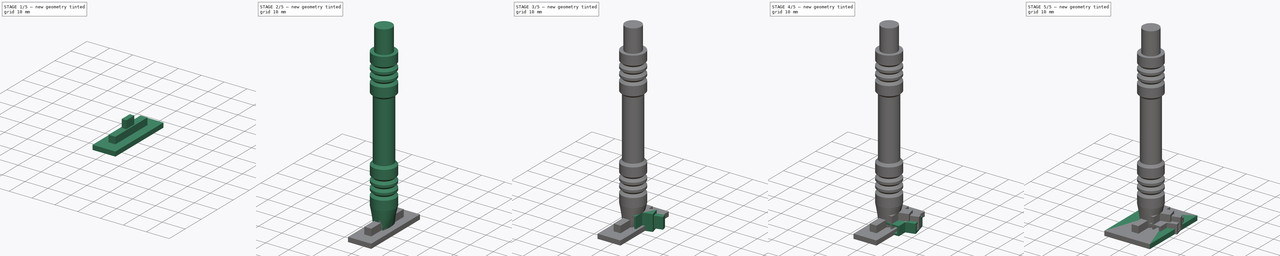
[diagram: build sequence overview — one tinted view per stage of 5, left to right]
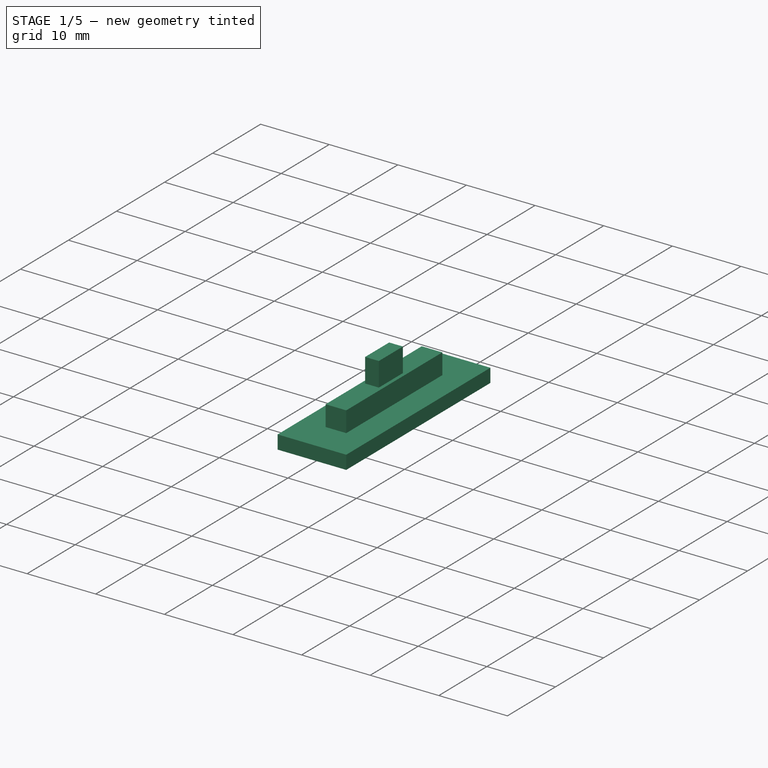
[diagram: stage 1 of 5 — iso view after this stage's code; geometry added in this stage tinted green]
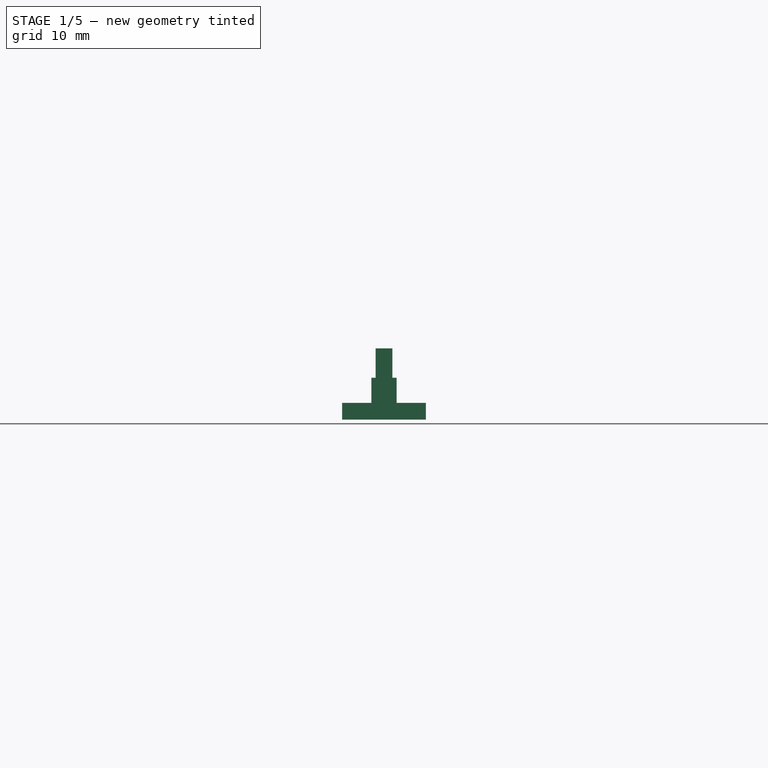
[diagram: stage 1 of 5 — front view after this stage's code; geometry added in this stage tinted green]
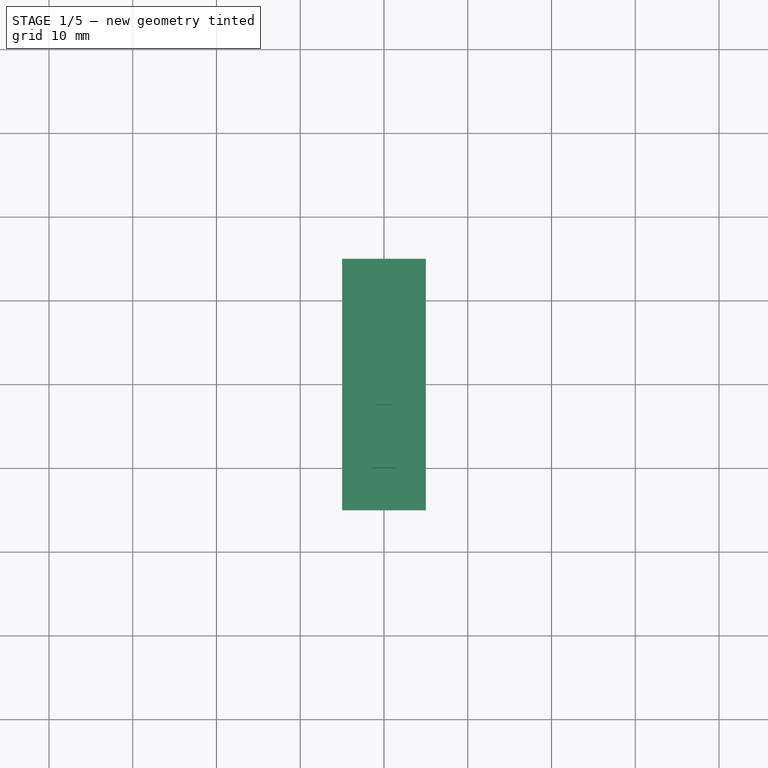
[diagram: stage 1 of 5 — top view after this stage's code; geometry added in this stage tinted green]
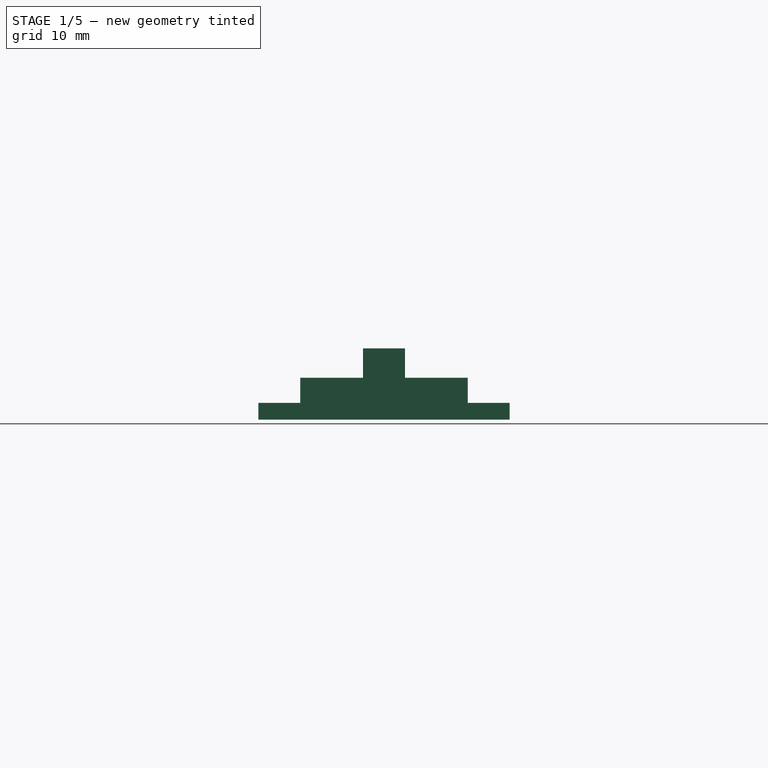
[diagram: stage 1 of 5 — right view after this stage's code; geometry added in this stage tinted green]
FCSTD DOCUMENT  (FreeCAD 0.20R29603 (Git))
Label: NeuroHelmet
License: All rights reserved
LicenseURL: http://en.wikipedia.org/wiki/All_rights_reserved
objects: Sketcher::SketchObject×18, PartDesign::Pad×10, PartDesign::Body×5, PartDesign::Pocket×4, PartDesign::AdditiveLoft×1, PartDesign::Revolution×1
note: 55 computed .brp shape members not serialized (recipe doc carries the construction recipe); baked Part::Feature solids carry a one-line shape summary decoded from their .brp

FEATURE [PartDesign::Body] Body003  label="Pillar"
  Group = -> [Sketch009,Sketch010,AdditiveLoft,Sketch011,Sketch012,Revolution,Sketch013,Pad005,Sketch014,Pocket003]
  Origin = -> Origin003
  Tip = -> Pocket003
FEATURE [Sketcher::SketchObject] Sketch015
  FullyConstrained = true
  MapMode = 5
  Support = -> [XY_Plane004]
  sketch-geometry (5):
    g0: LineSegment StartX=-5 StartY=15 StartZ=0 EndX=-5 EndY=-15 EndZ=0
    g1: LineSegment StartX=-5 StartY=-15 StartZ=0 EndX=5 EndY=-15 EndZ=0
    g2: LineSegment StartX=5 StartY=-15 StartZ=0 EndX=5 EndY=15 EndZ=0
    g3: LineSegment StartX=5 StartY=15 StartZ=0 EndX=-5 EndY=15 EndZ=0
    g4: GeomPoint X=0 Y=0 Z=0
  constraints (12):
    c: Coincident(g0,g1)
    c: Coincident(g1,g2)
    c: Coincident(g2,g3)
    c: Coincident(g3,g0)
    c: Horizontal(g1)
    c: Horizontal(g3)
    c: Vertical(g0)
    c: Vertical(g2)
    c: Symmetric(g1,g0,g4)
    c: Coincident(g4,g-1)
    c: DistanceX(g3,g3) = 10
    c: DistanceY(g2,g2) = 30
FEATURE [PartDesign::Pad] Pad007
  Direction = (0,0,1)
  Length = 2
  Length2 = 10
  Profile = -> Sketch015
  ReferenceAxis = -> Sketch015 [N_Axis]
  Type = 0
FEATURE [Sketcher::SketchObject] Sketch016
  FullyConstrained = true
  MapMode = 5
  Placement = pos=(0,0,2) rot=(0,0,1;0rad)
  Support = -> [Pad007]
  sketch-geometry (5):
    g0: LineSegment StartX=-1.5 StartY=10 StartZ=0 EndX=-1.5 EndY=-10 EndZ=0
    g1: LineSegment StartX=-1.5 StartY=-10 StartZ=0 EndX=1.5 EndY=-10 EndZ=0
    g2: LineSegment StartX=1.5 StartY=-10 StartZ=0 EndX=1.5 EndY=10 EndZ=0
    g3: LineSegment StartX=1.5 StartY=10 StartZ=0 EndX=-1.5 EndY=10 EndZ=0
    g4: GeomPoint X=0 Y=0 Z=0
  constraints (12):
    c: Coincident(g0,g1)
    c: Coincident(g1,g2)
    c: Coincident(g2,g3)
    c: Coincident(g3,g0)
    c: Horizontal(g1)
    c: Horizontal(g3)
    c: Vertical(g0)
    c: Vertical(g2)
    c: Symmetric(g1,g0,g4)
    c: Coincident(g4,g-1)
    c: DistanceX(g3,g3) = 3
    c: DistanceY(g2,g2) = 20
FEATURE [PartDesign::Pad] Pad008
  BaseFeature = -> Pad007
  Direction = (0,0,1)
  Length = 3
  Length2 = 10
  Profile = -> Sketch016
  ReferenceAxis = -> Sketch016 [N_Axis]
  Type = 0
FEATURE [Sketcher::SketchObject] Sketch017
  FullyConstrained = true
  MapMode = 5
  Placement = pos=(0,0,5) rot=(0,0,1;0rad)
  Support = -> [Pad008]
  sketch-geometry (5):
    g0: LineSegment StartX=-1 StartY=2.5 StartZ=0 EndX=-1 EndY=-2.5 EndZ=0
    g1: LineSegment StartX=-1 StartY=-2.5 StartZ=0 EndX=1 EndY=-2.5 EndZ=0
    g2: LineSegment StartX=1 StartY=-2.5 StartZ=0 EndX=1 EndY=2.5 EndZ=0
    g3: LineSegment StartX=1 StartY=2.5 StartZ=0 EndX=-1 EndY=2.5 EndZ=0
    g4: GeomPoint X=0 Y=0 Z=0
  constraints (12):
    c: Coincident(g0,g1)
    c: Coincident(g1,g2)
    c: Coincident(g2,g3)
    c: Coincident(g3,g0)
    c: Horizontal(g1)
    c: Horizontal(g3)
    c: Vertical(g0)
    c: Vertical(g2)
    c: Symmetric(g1,g0,g4)
    c: Coincident(g4,g-1)
    c: DistanceY(g2,g2) = 5
    c: DistanceX(g3,g3) = 2
FEATURE [PartDesign::Pad] Pad009
  BaseFeature = -> Pad008
  Direction = (0,0,1)
  Length = 3.5
  Length2 = 10
  Profile = -> Sketch017
  ReferenceAxis = -> Sketch017 [N_Axis]
  Type = 0
FEATURE [PartDesign::Body] Body004  label="ConnectorFront"
  Group = -> [Sketch015,Pad007,Sketch016,Pad008,Sketch017,Pad009]
  Origin = -> Origin004
  Tip = -> Pad009
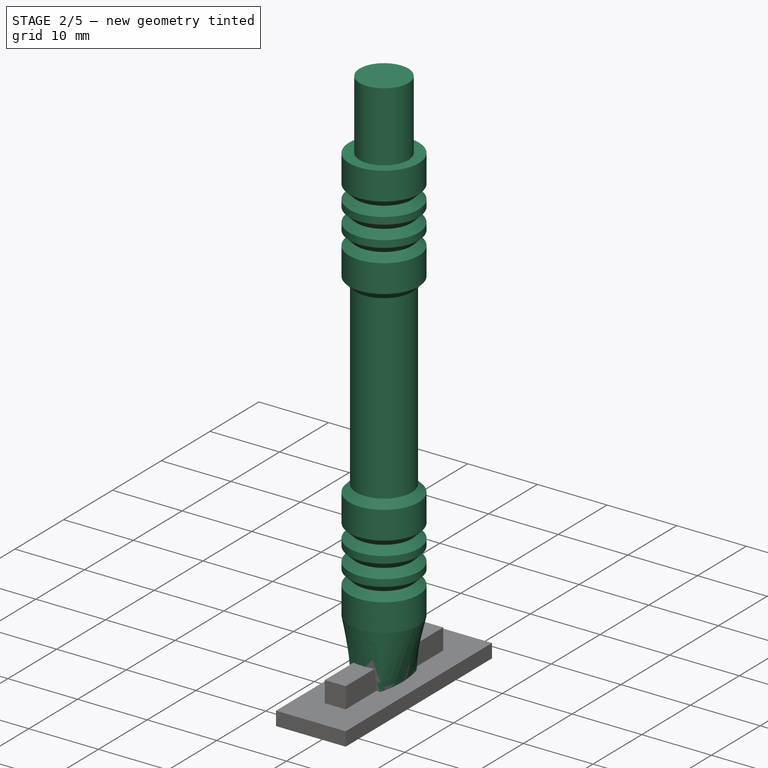
[diagram: stage 2 of 5 — iso view after this stage's code; geometry added in this stage tinted green]
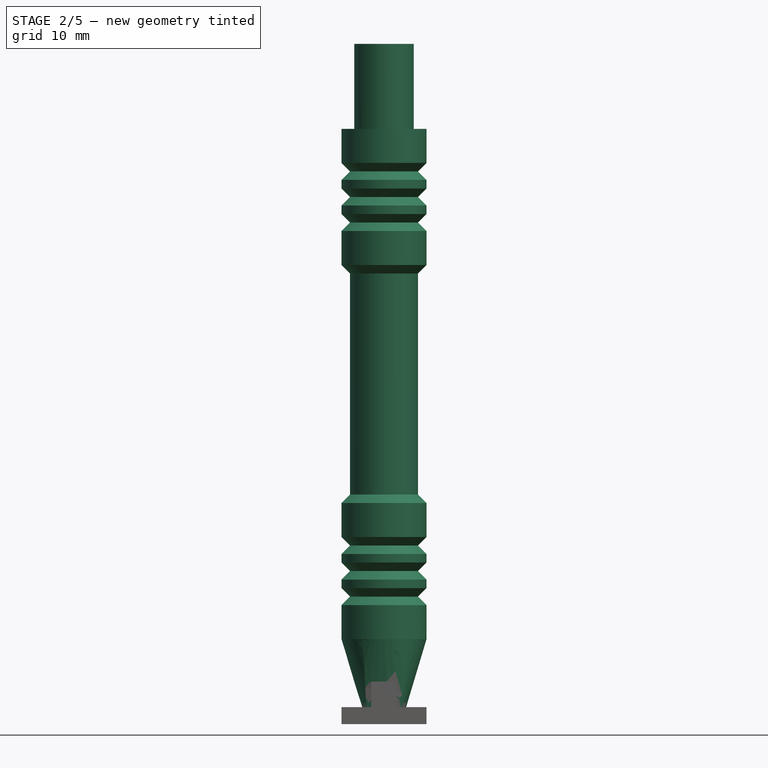
[diagram: stage 2 of 5 — front view after this stage's code; geometry added in this stage tinted green]
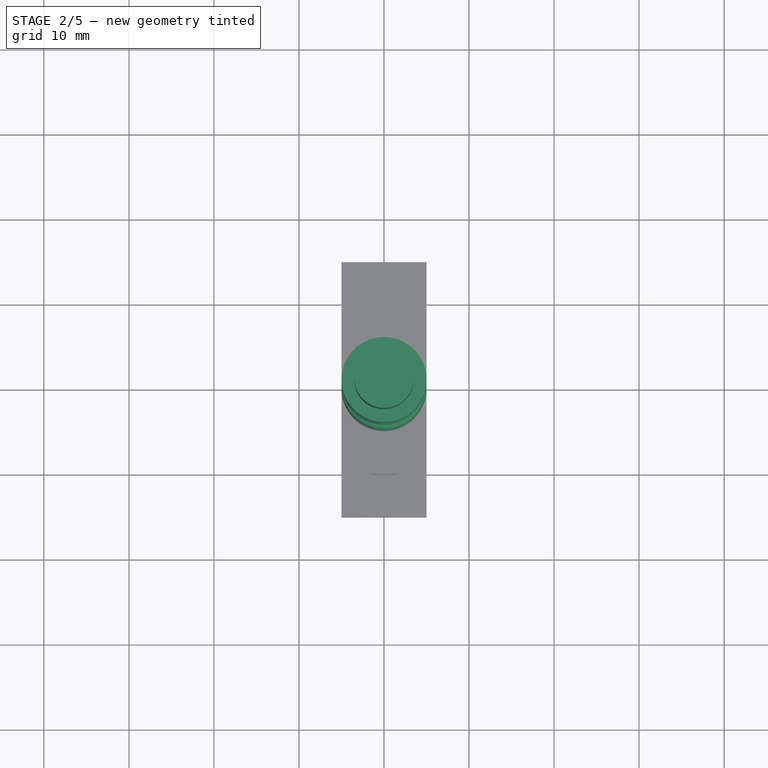
[diagram: stage 2 of 5 — top view after this stage's code; geometry added in this stage tinted green]
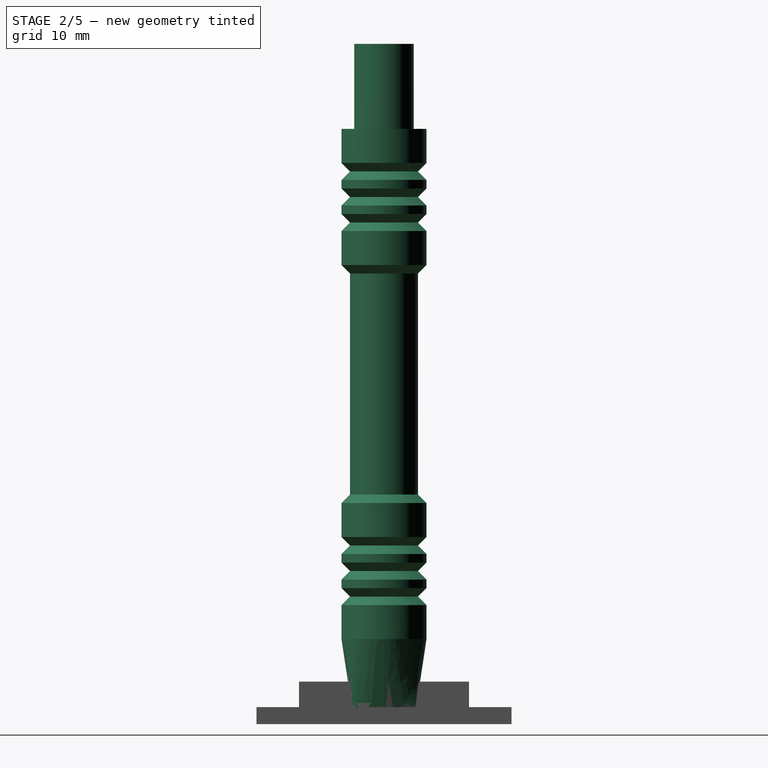
[diagram: stage 2 of 5 — right view after this stage's code; geometry added in this stage tinted green]
FEATURE [Sketcher::SketchObject] Sketch008
  FullyConstrained = true
  MapMode = 5
  Placement = pos=(7.59575,2.03528,0) rot=(0.476905,0.621515,0.621515;2.25159rad)
  Support = -> [Pocket002]
  sketch-geometry (5):
    g0: LineSegment StartX=2e-16 StartY=6 StartZ=0 EndX=2e-16 EndY=1 EndZ=0
    g1: LineSegment StartX=2e-16 StartY=1 StartZ=0 EndX=2 EndY=1 EndZ=0
    g2: LineSegment StartX=2 StartY=1 StartZ=0 EndX=2 EndY=6 EndZ=0
    g3: LineSegment StartX=2 StartY=6 StartZ=0 EndX=2e-16 EndY=6 EndZ=0
    g4: GeomPoint X=1 Y=3.5 Z=0
  constraints (13):
    c: Coincident(g0,g1)
    c: Coincident(g1,g2)
    c: Coincident(g2,g3)
    c: Coincident(g3,g0)
    c: Horizontal(g1)
    c: Horizontal(g3)
    c: Vertical(g0)
    c: Vertical(g2)
    c: Symmetric(g1,g0,g4)
    c: DistanceX(g4) = 1
    c: DistanceY(g4) = 3.5
    c: DistanceX(g1,g1) = 2
    c: DistanceY(g2,g2) = 5
FEATURE [Sketcher::SketchObject] Sketch009
  FullyConstrained = true
  MapMode = 5
  Support = -> [XY_Plane003]
  sketch-geometry (5):
    g0: LineSegment StartX=-2 StartY=3.5 StartZ=0 EndX=-2 EndY=-3.5 EndZ=0
    g1: LineSegment StartX=-2 StartY=-3.5 StartZ=0 EndX=2 EndY=-3.5 EndZ=0
    g2: LineSegment StartX=2 StartY=-3.5 StartZ=0 EndX=2 EndY=3.5 EndZ=0
    g3: LineSegment StartX=2 StartY=3.5 StartZ=0 EndX=-2 EndY=3.5 EndZ=0
    g4: GeomPoint X=0 Y=0 Z=0
  constraints (12):
    c: Coincident(g0,g1)
    c: Coincident(g1,g2)
    c: Coincident(g2,g3)
    c: Coincident(g3,g0)
    c: Horizontal(g1)
    c: Horizontal(g3)
    c: Vertical(g0)
    c: Vertical(g2)
    c: Symmetric(g1,g0,g4)
    c: Coincident(g4,g-1)
    c: DistanceX(g3,g3) = 4
    c: DistanceY(g2,g2) = 7
FEATURE [Sketcher::SketchObject] Sketch010
  AttachmentOffset = pos=(0,0,10) rot=(0,0,1;0rad)
  FullyConstrained = true
  MapMode = 5
  Placement = pos=(0,0,10) rot=(0,0,1;0rad)
  Support = -> [XY_Plane003]
  sketch-geometry (1):
    g0: Circle CenterX=0 CenterY=0 CenterZ=0 NormalX=0 NormalY=0 NormalZ=1 AngleXU=0 Radius=5
  constraints (2):
    c: Coincident(g0,g-1)
    c: Diameter(g0) = 10
FEATURE [PartDesign::AdditiveLoft] AdditiveLoft
  Closed = false
  Profile = -> Sketch010
  Ruled = false
  Sections = -> [Sketch009]
FEATURE [Sketcher::SketchObject] Sketch011
  FullyConstrained = true
  MapMode = 5
  Placement = pos=(0,0,10) rot=(0,0,1;0rad)
  Support = -> [AdditiveLoft]
  sketch-geometry (1):
    g0: Circle CenterX=0 CenterY=0 CenterZ=0 NormalX=0 NormalY=0 NormalZ=1 AngleXU=0 Radius=5
  constraints (2):
    c: Coincident(g0,g-1)
    c: Diameter(g0) = 10
FEATURE [Sketcher::SketchObject] Sketch012
  AttachmentOffset = pos=(0,10,0) rot=(0,0,1;0rad)
  FullyConstrained = true
  MapMode = 5
  Placement = pos=(-2.2e-15,2.2e-15,10) rot=(0.57735,0.57735,0.57735;2.0944rad)
  Support = -> [YZ_Plane003]
  sketch-geometry (28):
    g0: LineSegment StartX=0 StartY=0 StartZ=0 EndX=5 EndY=0 EndZ=0
    g1: LineSegment StartX=5 StartY=0 StartZ=0 EndX=5 EndY=4 EndZ=0
    g2: LineSegment StartX=5 StartY=4 StartZ=0 EndX=4 EndY=5 EndZ=0
    g3: LineSegment StartX=4 StartY=5 StartZ=0 EndX=5 EndY=6 EndZ=0
    g4: LineSegment StartX=5 StartY=6 StartZ=0 EndX=5 EndY=7 EndZ=0
    g5: LineSegment StartX=5 StartY=7 StartZ=0 EndX=4 EndY=8 EndZ=0
    g6: LineSegment StartX=4 StartY=8 StartZ=0 EndX=5 EndY=9 EndZ=0
    g7: LineSegment StartX=5 StartY=9 StartZ=0 EndX=5 EndY=10 EndZ=0
    g8: LineSegment StartX=5 StartY=10 StartZ=0 EndX=4 EndY=11 EndZ=0
    g9: LineSegment StartX=4 StartY=11 StartZ=0 EndX=5 EndY=12 EndZ=0
    g10: LineSegment StartX=5 StartY=12 StartZ=0 EndX=5 EndY=16 EndZ=0
    g11: LineSegment StartX=5 StartY=16 StartZ=0 EndX=4 EndY=17 EndZ=0
    g12: LineSegment StartX=4 StartY=17 StartZ=0 EndX=4 EndY=43 EndZ=0
    g13: LineSegment StartX=4 StartY=43 StartZ=0 EndX=5 EndY=44 EndZ=0
    g14: LineSegment StartX=5 StartY=44 StartZ=0 EndX=5 EndY=48 EndZ=0
    g15: LineSegment StartX=5 StartY=48 StartZ=0 EndX=4 EndY=49 EndZ=0
    g16: LineSegment StartX=4 StartY=49 StartZ=0 EndX=5 EndY=50 EndZ=0
    g17: LineSegment StartX=5 StartY=50 StartZ=0 EndX=5 EndY=51 EndZ=0
    g18: LineSegment StartX=5 StartY=51 StartZ=0 EndX=4 EndY=52 EndZ=0
    g19: LineSegment StartX=4 StartY=52 StartZ=0 EndX=5 EndY=53 EndZ=0
    g20: LineSegment StartX=5 StartY=53 StartZ=0 EndX=5 EndY=54 EndZ=0
    g21: LineSegment StartX=5 StartY=54 StartZ=0 EndX=4 EndY=55 EndZ=0
    g22: LineSegment StartX=4 StartY=55 StartZ=0 EndX=5 EndY=56 EndZ=0
    g23: LineSegment StartX=5 StartY=56 StartZ=0 EndX=5 EndY=60 EndZ=0
    g24: LineSegment StartX=5 StartY=60 StartZ=0 EndX=0 EndY=60 EndZ=0
    g25: LineSegment StartX=0 StartY=60 StartZ=0 EndX=0 EndY=0 EndZ=0
    g26: LineSegment StartX=4 StartY=0 StartZ=0 EndX=4 EndY=60 EndZ=0
    g27: LineSegment StartX=5 StartY=60 StartZ=0 EndX=5 EndY=0 EndZ=0
  constraints (84):
    c: Coincident(g-1,g0)
    c: PointOnObject(g0,g-1)
    c: Coincident(g0,g1)
    c: Vertical(g1)
    c: Coincident(g1,g2)
    c: Coincident(g2,g3)
    c: Coincident(g3,g4)
    c: Coincident(g4,g5)
    c: Coincident(g5,g6)
    c: Coincident(g6,g7)
    c: Coincident(g7,g8)
    c: Coincident(g8,g9)
    c: Coincident(g9,g10)
    c: Vertical(g10)
    c: Coincident(g10,g11)
    c: Coincident(g11,g12)
    c: Coincident(g12,g13)
    c: Coincident(g13,g14)
    c: Vertical(g14)
    c: Coincident(g14,g15)
    c: Coincident(g15,g16)
    c: Coincident(g16,g17)
    c: Vertical(g17)
    c: Coincident(g17,g18)
    c: Coincident(g18,g19)
    c: Coincident(g19,g20)
    c: Vertical(g20)
    c: Coincident(g20,g21)
    c: Coincident(g21,g22)
    c: Coincident(g22,g23)
    c: Coincident(g23,g24)
    c: PointOnObject(g24,g-2)
    c: Horizontal(g24)
    c: Coincident(g24,g25)
    c: Coincident(g25,g0)
    c: PointOnObject(g26,g-1)
    c: Vertical(g26)
    c: Vertical(g27)
    c: DistanceY(g25,g25) = 60
    c: DistanceX(g0,g0) = 5
    c: Coincident(g27,g0)
    c: DistanceX(g26,g27) = 1
    c: PointOnObject(g26,g24)
    c: PointOnObject(g27,g24)
    c: PointOnObject(g23,g27)
    c: PointOnObject(g22,g27)
    c: PointOnObject(g20,g27)
    c: PointOnObject(g17,g27)
    c: PointOnObject(g14,g27)
    c: PointOnObject(g15,g26)
    c: PointOnObject(g18,g26)
    c: PointOnObject(g21,g26)
    c: PointOnObject(g12,g26)
    c: PointOnObject(g11,g26)
    c: PointOnObject(g10,g27)
    c: PointOnObject(g8,g26)
    c: PointOnObject(g7,g27)
    c: PointOnObject(g6,g27)
    c: PointOnObject(g5,g26)
    c: PointOnObject(g4,g27)
    c: PointOnObject(g3,g27)
    c: PointOnObject(g2,g26)
    c: Angle(g2) = 2.35619
    c: Angle(g3) = 0.785398
    c: Parallel(g2,g5)
    c: Parallel(g5,g8)
    c: Parallel(g8,g11)
    c: Parallel(g11,g21)
    c: Parallel(g21,g18)
    c: Parallel(g18,g15)
    c: Parallel(g22,g19)
    c: Parallel(g19,g16)
    c: Parallel(g16,g13)
    c: Parallel(g13,g9)
    c: Parallel(g9,g6)
    c: Parallel(g6,g3)
    c: Equal(g17,g20)
    c: Equal(g20,g7)
    c: Equal(g7,g4)
    c: DistanceY(g20,g20) = 1
    c: Equal(g23,g14)
    c: Equal(g14,g10)
    c: Equal(g10,g1)
    c: DistanceY(g1,g1) = 4
FEATURE [PartDesign::Revolution] Revolution
  Angle = 360
  Axis = (-2e-16,3e-16,1)
  Base = (-2.2e-15,2.2e-15,10)
  BaseFeature = -> AdditiveLoft
  Profile = -> Sketch012
  ReferenceAxis = -> Sketch012 [V_Axis]
  Reversed = true
FEATURE [Sketcher::SketchObject] Sketch013
  FullyConstrained = true
  MapMode = 5
  Placement = pos=(-1.55e-14,1.94e-14,70) rot=(0,0,1;0rad)
  Support = -> [Revolution]
  sketch-geometry (1):
    g0: Circle CenterX=0 CenterY=0 CenterZ=0 NormalX=0 NormalY=0 NormalZ=1 AngleXU=0 Radius=3.5
  constraints (2):
    c: Coincident(g0,g-1)
    c: Diameter(g0) = 7
FEATURE [PartDesign::Pad] Pad005
  BaseFeature = -> Revolution
  Direction = (-2e-16,3e-16,1)
  Length = 10
  Length2 = 10
  Profile = -> Sketch013
  ReferenceAxis = -> Sketch013 [N_Axis]
  Type = 0
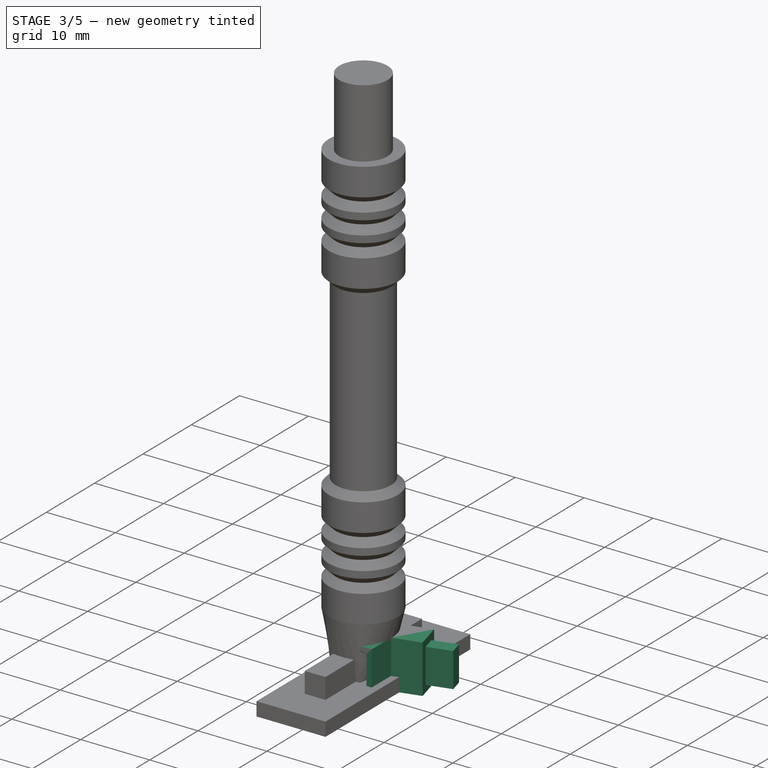
[diagram: stage 3 of 5 — iso view after this stage's code; geometry added in this stage tinted green]
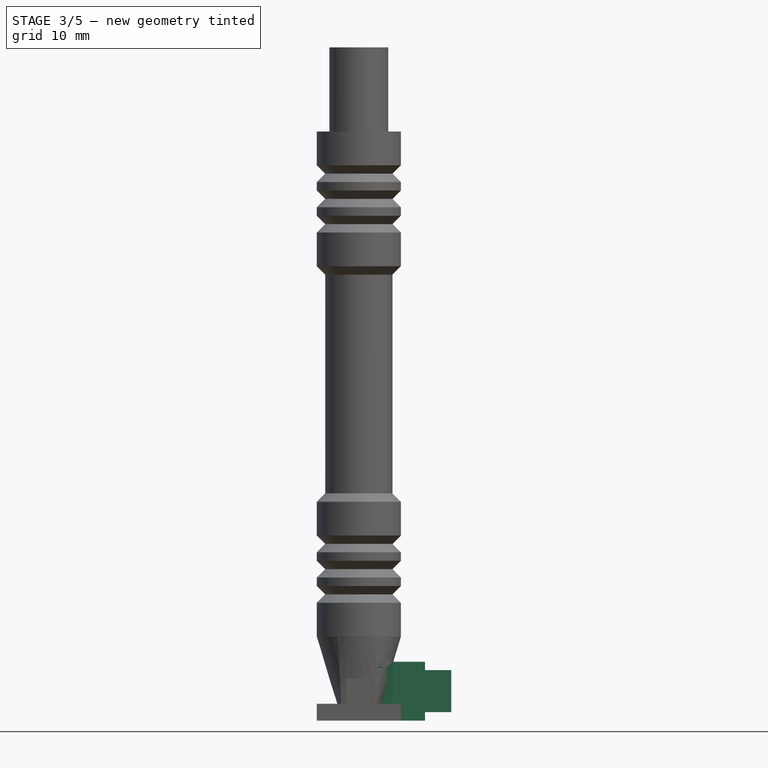
[diagram: stage 3 of 5 — front view after this stage's code; geometry added in this stage tinted green]
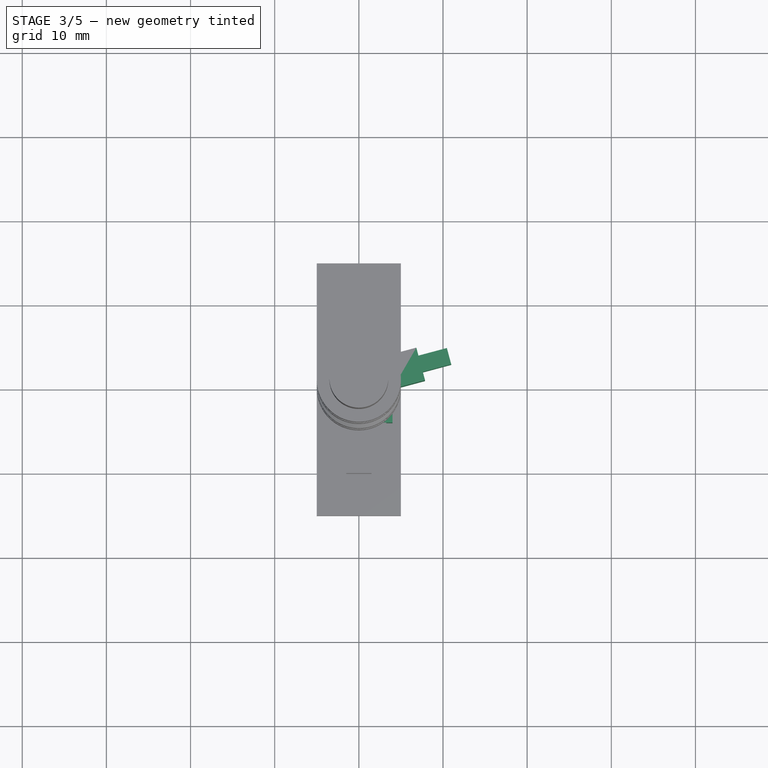
[diagram: stage 3 of 5 — top view after this stage's code; geometry added in this stage tinted green]
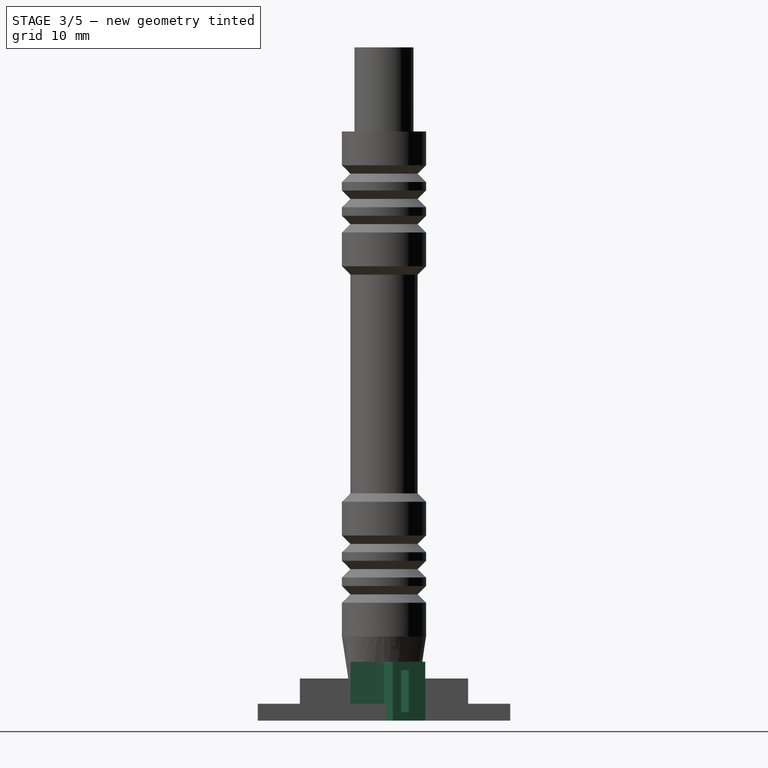
[diagram: stage 3 of 5 — right view after this stage's code; geometry added in this stage tinted green]
FEATURE [PartDesign::Body] Body001  label="RotatorHorizont"
  Group = -> [Sketch003,Pad003,Sketch004,Pocket,Sketch005,Pocket001]
  Origin = -> Origin001
  Tip = -> Pocket001
FEATURE [Sketcher::SketchObject] Sketch006
  FullyConstrained = true
  MapMode = 5
  Support = -> [XY_Plane002]
  sketch-geometry (6):
    g0: LineSegment StartX=4 StartY=0 StartZ=0 EndX=4 EndY=-4 EndZ=0
    g1: LineSegment StartX=4 StartY=-4 StartZ=0 EndX=0 EndY=-4 EndZ=0
    g2: LineSegment StartX=0 StartY=-4 StartZ=0 EndX=0 EndY=3.06931 EndZ=0
    g3: LineSegment StartX=0 StartY=3.06931 StartZ=0 EndX=6.82843 EndY=4.89898 EndZ=0
    g4: LineSegment StartX=6.82843 StartY=4.89898 StartZ=0 EndX=7.8637 EndY=1.03528 EndZ=0
    g5: LineSegment StartX=7.8637 StartY=1.03528 StartZ=0 EndX=4 EndY=0 EndZ=0
  constraints (18):
    c: Coincident(g0,g1)
    c: Coincident(g1,g2)
    c: Coincident(g3,g4)
    c: Coincident(g4,g5)
    c: Coincident(g5,g0)
    c: Coincident(g2,g3)
    c: Horizontal(g1)
    c: Angle(g4,g-1) = 1.309
    c: Vertical(g0)
    c: Vertical(g2)
    c: Angle(g3,g4) = 1.5708
    c: Angle(g4,g5) = 1.5708
    c: DistanceY(g0,g0) = 4
    c: Distance(g4) = 4
    c: DistanceX(g1,g1) = 4
    c: Distance(g5) = 4
    c: PointOnObject(g0,g-1)
    c: PointOnObject(g-1,g2)
FEATURE [PartDesign::Pad] Pad004
  Direction = (0,0,1)
  Length = 7
  Length2 = 10
  Profile = -> Sketch006
  ReferenceAxis = -> Sketch006 [N_Axis]
  Type = 0
FEATURE [Sketcher::SketchObject] Sketch007
  FullyConstrained = true
  MapMode = 5
  Placement = pos=(0,-4,0) rot=(1,0,0;1.5708rad)
  Support = -> [Pad004]
  sketch-geometry (5):
    g0: LineSegment StartX=0.75 StartY=6.25 StartZ=0 EndX=0.75 EndY=0.75 EndZ=0
    g1: LineSegment StartX=0.75 StartY=0.75 StartZ=0 EndX=3.25 EndY=0.75 EndZ=0
    g2: LineSegment StartX=3.25 StartY=0.75 StartZ=0 EndX=3.25 EndY=6.25 EndZ=0
    g3: LineSegment StartX=3.25 StartY=6.25 StartZ=0 EndX=0.75 EndY=6.25 EndZ=0
    g4: GeomPoint X=2 Y=3.5 Z=0
  constraints (13):
    c: Coincident(g0,g1)
    c: Coincident(g1,g2)
    c: Coincident(g2,g3)
    c: Coincident(g3,g0)
    c: Horizontal(g1)
    c: Horizontal(g3)
    c: Vertical(g0)
    c: Vertical(g2)
    c: Symmetric(g1,g0,g4)
    c: DistanceX(g4) = 2
    c: DistanceY(g4) = 3.5
    c: DistanceY(g2,g2) = 5.5
    c: DistanceX(g1,g1) = 2.5
FEATURE [PartDesign::Pocket] Pocket002
  BaseFeature = -> Pad004
  Direction = (0,1,-2e-16)
  Length = 4
  Length2 = 5
  Profile = -> Sketch007
  ReferenceAxis = -> Sketch007 [N_Axis]
  Type = 0
FEATURE [PartDesign::Pad] Pad006
  BaseFeature = -> Pocket002
  Direction = (0.965926,0.258819,-1e-16)
  Length = 3.5
  Length2 = 10
  Profile = -> Sketch008
  ReferenceAxis = -> Sketch008 [N_Axis]
  Type = 0
FEATURE [PartDesign::Body] Body002  label="RotatorVertical"
  Group = -> [Sketch006,Pad004,Sketch007,Pocket002,Sketch008,Pad006]
  Origin = -> Origin002
  Tip = -> Pad006
FEATURE [Sketcher::SketchObject] Sketch014
  FullyConstrained = true
  MapMode = 5
  Placement = pos=(0,0,0) rot=(1,0,0;3.14159rad)
  Support = -> [Pad005]
  sketch-geometry (5):
    g0: LineSegment StartX=-1.25 StartY=2.75 StartZ=0 EndX=-1.25 EndY=-2.75 EndZ=0
    g1: LineSegment StartX=-1.25 StartY=-2.75 StartZ=0 EndX=1.25 EndY=-2.75 EndZ=0
    g2: LineSegment StartX=1.25 StartY=-2.75 StartZ=0 EndX=1.25 EndY=2.75 EndZ=0
    g3: LineSegment StartX=1.25 StartY=2.75 StartZ=0 EndX=-1.25 EndY=2.75 EndZ=0
    g4: GeomPoint X=0 Y=0 Z=0
  constraints (12):
    c: Coincident(g0,g1)
    c: Coincident(g1,g2)
    c: Coincident(g2,g3)
    c: Coincident(g3,g0)
    c: Horizontal(g1)
    c: Horizontal(g3)
    c: Vertical(g0)
    c: Vertical(g2)
    c: Symmetric(g1,g0,g4)
    c: Coincident(g4,g-1)
    c: DistanceX(g3,g3) = 2.5
    c: DistanceY(g2,g2) = 5.5
FEATURE [PartDesign::Pocket] Pocket003
  BaseFeature = -> Pad005
  Direction = (0,0,1)
  Length = 4
  Length2 = 5
  Profile = -> Sketch014
  ReferenceAxis = -> Sketch014 [N_Axis]
  Type = 0
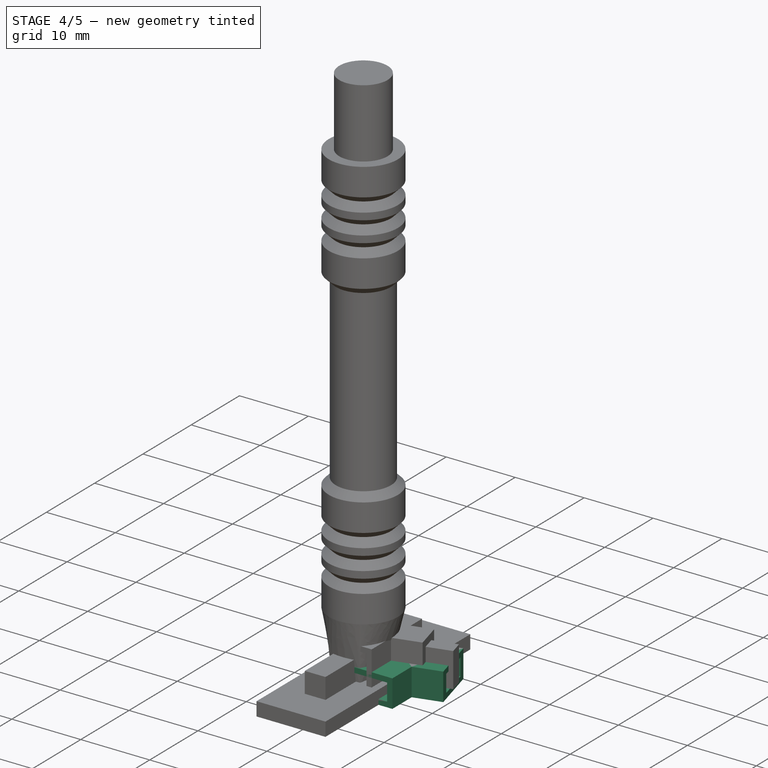
[diagram: stage 4 of 5 — iso view after this stage's code; geometry added in this stage tinted green]
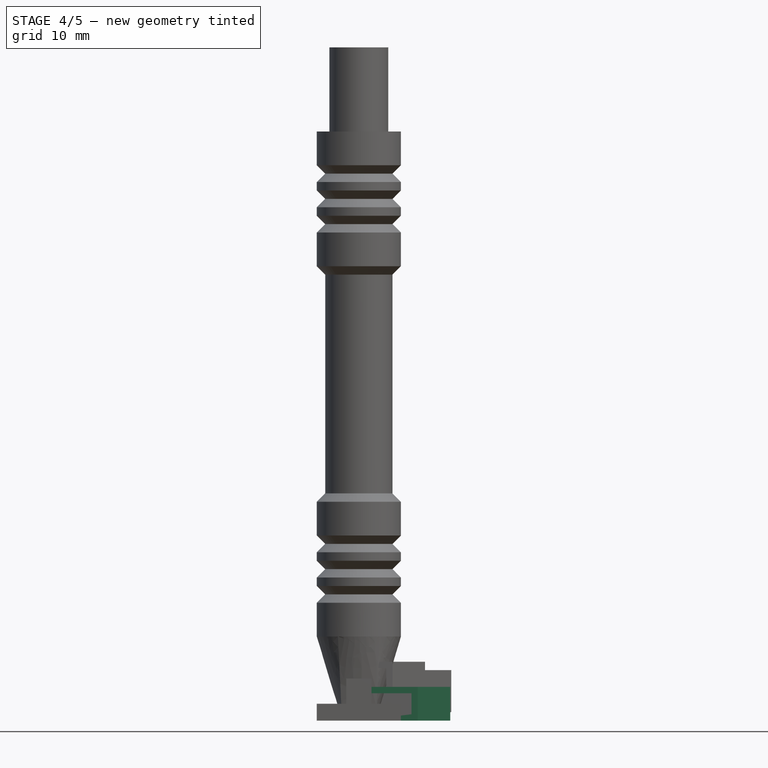
[diagram: stage 4 of 5 — front view after this stage's code; geometry added in this stage tinted green]
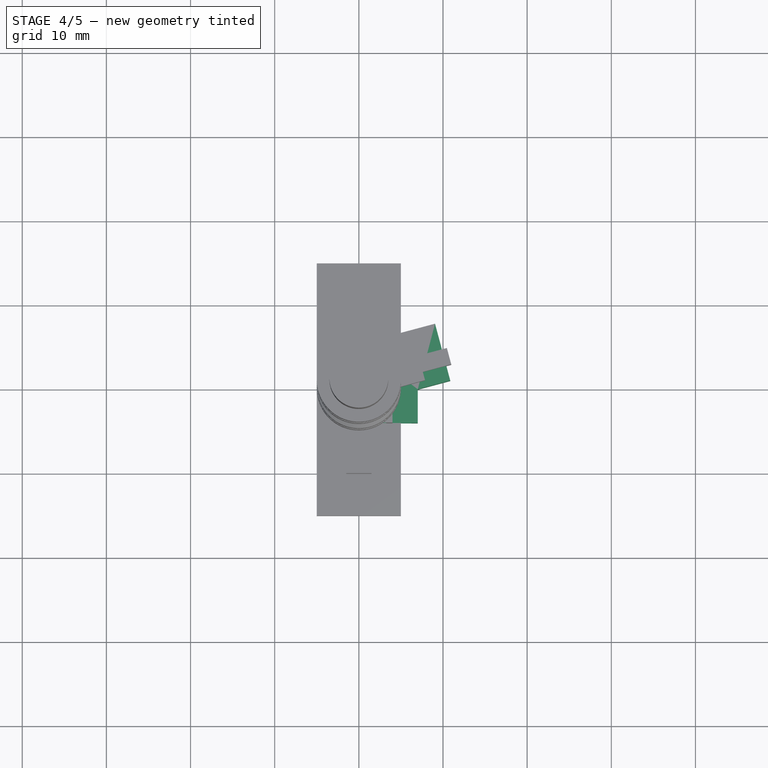
[diagram: stage 4 of 5 — top view after this stage's code; geometry added in this stage tinted green]
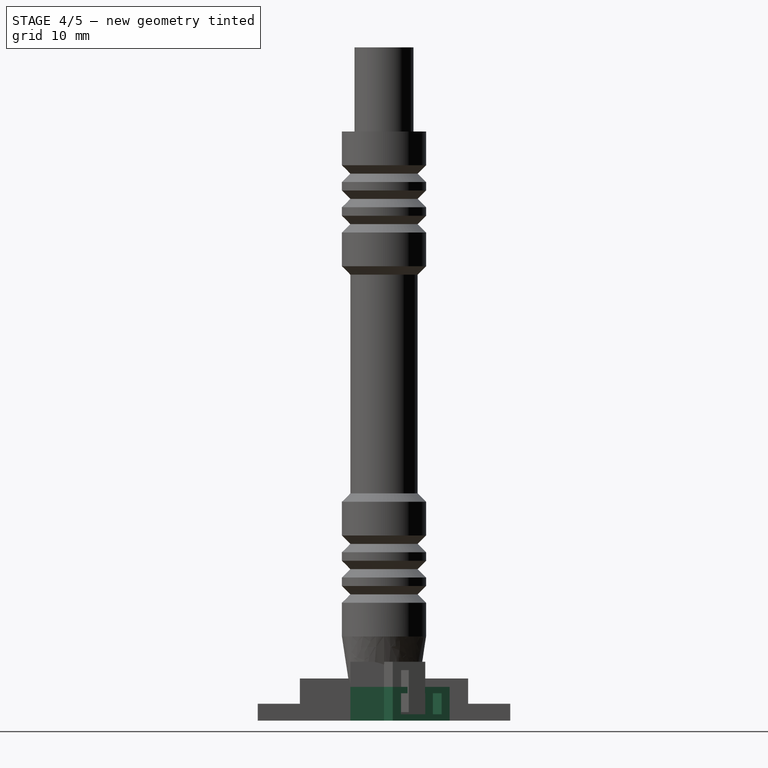
[diagram: stage 4 of 5 — right view after this stage's code; geometry added in this stage tinted green]
FEATURE [PartDesign::Body] Body  label="ConnectorBack"
  Group = -> [Sketch,Pad,Sketch001,Pad001,Sketch002,Pad002]
  Origin = -> Origin
  Tip = -> Pad002
FEATURE [Sketcher::SketchObject] Sketch003
  FullyConstrained = true
  MapMode = 5
  Support = -> [XY_Plane001]
  sketch-geometry (6):
    g0: LineSegment StartX=7 StartY=0 StartZ=0 EndX=7 EndY=-4 EndZ=0
    g1: LineSegment StartX=7 StartY=-4 StartZ=0 EndX=0 EndY=-4 EndZ=0
    g2: LineSegment StartX=0 StartY=-4 StartZ=0 EndX=0 EndY=5.37129 EndZ=0
    g3: LineSegment StartX=0 StartY=5.37129 StartZ=0 EndX=9.05197 EndY=7.79676 EndZ=0
    g4: LineSegment StartX=9.05197 StartY=7.79676 StartZ=0 EndX=10.8637 EndY=1.03528 EndZ=0
    g5: LineSegment StartX=10.8637 StartY=1.03528 StartZ=0 EndX=7 EndY=0 EndZ=0
  constraints (18):
    c: Coincident(g0,g1)
    c: Coincident(g1,g2)
    c: Coincident(g3,g4)
    c: Coincident(g4,g5)
    c: Coincident(g5,g0)
    c: Coincident(g2,g3)
    c: Horizontal(g1)
    c: Angle(g4,g-1) = 1.309
    c: Vertical(g0)
    c: Vertical(g2)
    c: Angle(g3,g4) = 1.5708
    c: Angle(g4,g5) = 1.5708
    c: DistanceY(g0,g0) = 4
    c: Distance(g4) = 7
    c: DistanceX(g1,g1) = 7
    c: Distance(g5) = 4
    c: PointOnObject(g0,g-1)
    c: PointOnObject(g-1,g2)
FEATURE [PartDesign::Pad] Pad003
  Direction = (0,0,1)
  Length = 4
  Length2 = 10
  Profile = -> Sketch003
  ReferenceAxis = -> Sketch003 [N_Axis]
  Type = 0
FEATURE [Sketcher::SketchObject] Sketch004
  FullyConstrained = true
  MapMode = 5
  Placement = pos=(0,-4,0) rot=(1,0,0;1.5708rad)
  Support = -> [Pad003]
  sketch-geometry (5):
    g0: LineSegment StartX=0.75 StartY=0.75 StartZ=0 EndX=0.75 EndY=3.25 EndZ=0
    g1: LineSegment StartX=0.75 StartY=3.25 StartZ=0 EndX=6.25 EndY=3.25 EndZ=0
    g2: LineSegment StartX=6.25 StartY=3.25 StartZ=0 EndX=6.25 EndY=0.75 EndZ=0
    g3: LineSegment StartX=6.25 StartY=0.75 StartZ=0 EndX=0.75 EndY=0.75 EndZ=0
    g4: GeomPoint X=3.5 Y=2 Z=0
  constraints (13):
    c: Coincident(g0,g1)
    c: Coincident(g1,g2)
    c: Coincident(g2,g3)
    c: Coincident(g3,g0)
    c: Horizontal(g1)
    c: Horizontal(g3)
    c: Vertical(g0)
    c: Vertical(g2)
    c: Symmetric(g1,g0,g4)
    c: DistanceX(g4) = 3.5
    c: DistanceY(g4) = 2
    c: DistanceX(g1,g1) = 5.5
    c: DistanceY(g2,g2) = 2.5
FEATURE [PartDesign::Pocket] Pocket
  BaseFeature = -> Pad003
  Direction = (0,1,-2e-16)
  Length = 4
  Length2 = 5
  Profile = -> Sketch004
  ReferenceAxis = -> Sketch004 [N_Axis]
  Type = 0
FEATURE [Sketcher::SketchObject] Sketch005
  FullyConstrained = true
  MapMode = 5
  Placement = pos=(10.3948,2.78528,0) rot=(0.476905,0.621515,0.621515;2.25159rad)
  Support = -> [Pocket]
  sketch-geometry (5):
    g0: LineSegment StartX=-0.8 StartY=3.25 StartZ=0 EndX=-0.8 EndY=0.75 EndZ=0
    g1: LineSegment StartX=-0.8 StartY=0.75 StartZ=0 EndX=4.2 EndY=0.75 EndZ=0
    g2: LineSegment StartX=4.2 StartY=0.75 StartZ=0 EndX=4.2 EndY=3.25 EndZ=0
    g3: LineSegment StartX=4.2 StartY=3.25 StartZ=0 EndX=-0.8 EndY=3.25 EndZ=0
    g4: GeomPoint X=1.7 Y=2 Z=0
  constraints (13):
    c: Coincident(g0,g1)
    c: Coincident(g1,g2)
    c: Coincident(g2,g3)
    c: Coincident(g3,g0)
    c: Horizontal(g1)
    c: Horizontal(g3)
    c: Vertical(g0)
    c: Vertical(g2)
    c: Symmetric(g1,g0,g4)
    c: DistanceX(g4) = 1.7
    c: DistanceY(g4) = 2
    c: DistanceX(g3,g3) = 5
    c: DistanceY(g2,g2) = 2.5
FEATURE [PartDesign::Pocket] Pocket001
  BaseFeature = -> Pocket
  Direction = (-0.965926,-0.258819,0)
  Length = 4
  Length2 = 5
  Profile = -> Sketch005
  ReferenceAxis = -> Sketch005 [N_Axis]
  Type = 0
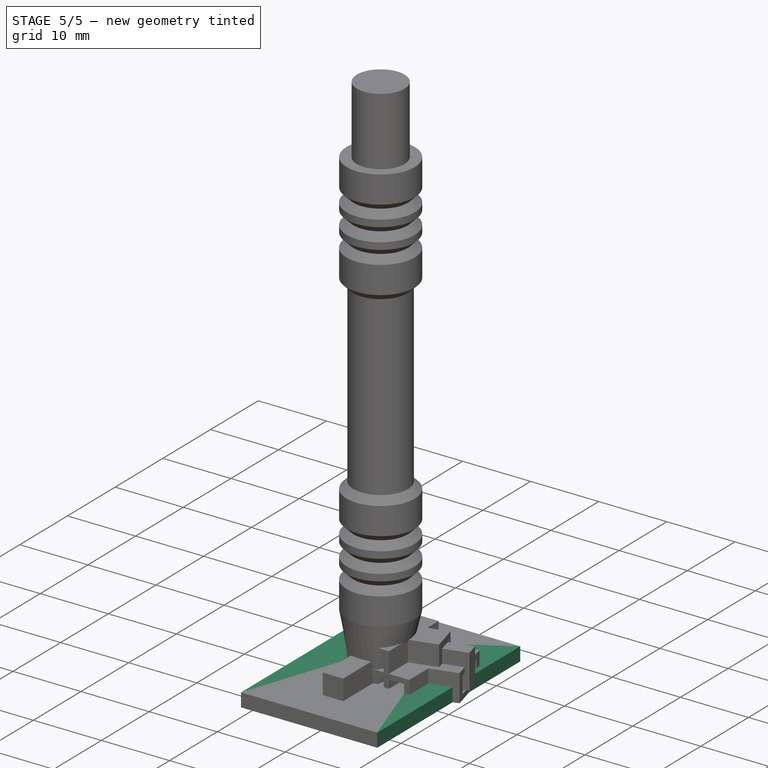
[diagram: stage 5 of 5 — iso view after this stage's code; geometry added in this stage tinted green]
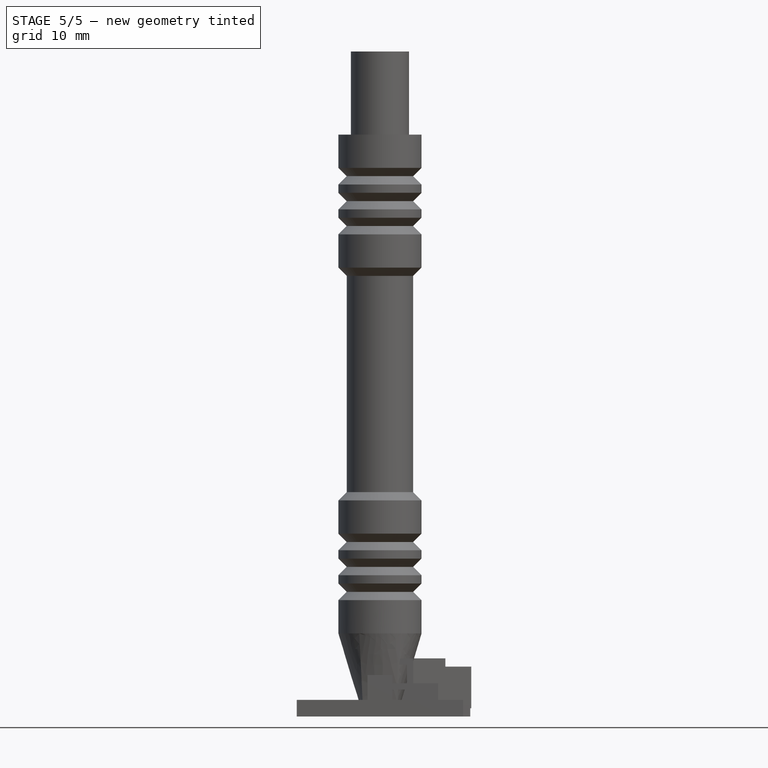
[diagram: stage 5 of 5 — front view after this stage's code; geometry added in this stage tinted green]
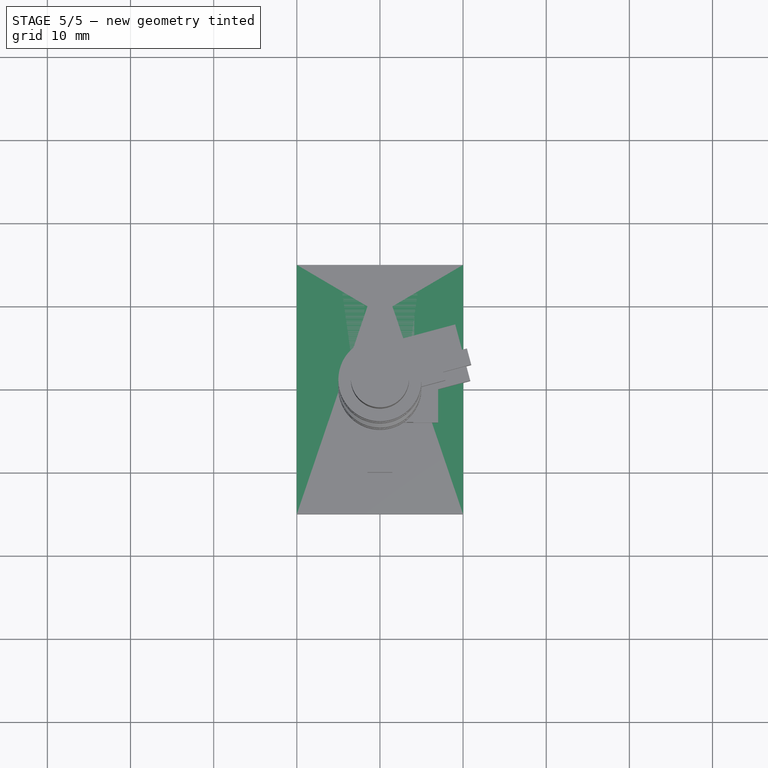
[diagram: stage 5 of 5 — top view after this stage's code; geometry added in this stage tinted green]
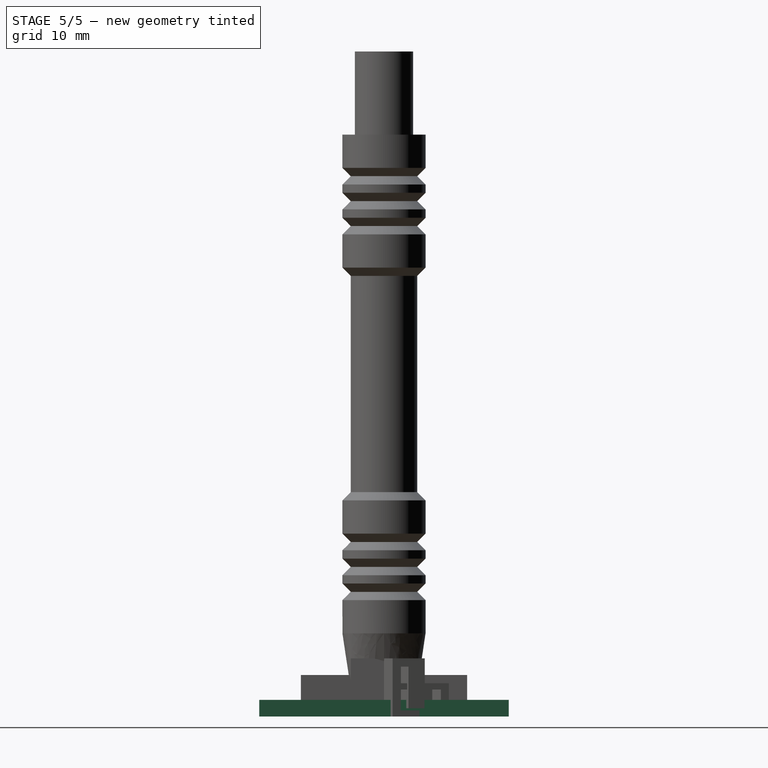
[diagram: stage 5 of 5 — right view after this stage's code; geometry added in this stage tinted green]
FEATURE [Sketcher::SketchObject] Sketch
  FullyConstrained = true
  MapMode = 5
  Support = -> [XY_Plane]
  sketch-geometry (5):
    g0: LineSegment StartX=-10 StartY=15 StartZ=0 EndX=-10 EndY=-15 EndZ=0
    g1: LineSegment StartX=-10 StartY=-15 StartZ=0 EndX=10 EndY=-15 EndZ=0
    g2: LineSegment StartX=10 StartY=-15 StartZ=0 EndX=10 EndY=15 EndZ=0
    g3: LineSegment StartX=10 StartY=15 StartZ=0 EndX=-10 EndY=15 EndZ=0
    g4: GeomPoint X=0 Y=0 Z=0
  constraints (12):
    c: Coincident(g0,g1)
    c: Coincident(g1,g2)
    c: Coincident(g2,g3)
    c: Coincident(g3,g0)
    c: Horizontal(g1)
    c: Horizontal(g3)
    c: Vertical(g0)
    c: Vertical(g2)
    c: Symmetric(g1,g0,g4)
    c: Coincident(g4,g-1)
    c: DistanceX(g3,g3) = 20
    c: DistanceY(g2,g2) = 30
FEATURE [PartDesign::Pad] Pad
  Direction = (0,0,1)
  Length = 2
  Length2 = 10
  Profile = -> Sketch
  ReferenceAxis = -> Sketch [N_Axis]
  Type = 0
FEATURE [Sketcher::SketchObject] Sketch001
  FullyConstrained = true
  MapMode = 5
  Placement = pos=(0,0,2) rot=(0,0,1;0rad)
  Support = -> [Pad]
  sketch-geometry (5):
    g0: LineSegment StartX=-1.5 StartY=10 StartZ=0 EndX=-1.5 EndY=-10 EndZ=0
    g1: LineSegment StartX=-1.5 StartY=-10 StartZ=0 EndX=1.5 EndY=-10 EndZ=0
    g2: LineSegment StartX=1.5 StartY=-10 StartZ=0 EndX=1.5 EndY=10 EndZ=0
    g3: LineSegment StartX=1.5 StartY=10 StartZ=0 EndX=-1.5 EndY=10 EndZ=0
    g4: GeomPoint X=0 Y=0 Z=0
  constraints (12):
    c: Coincident(g0,g1)
    c: Coincident(g1,g2)
    c: Coincident(g2,g3)
    c: Coincident(g3,g0)
    c: Horizontal(g1)
    c: Horizontal(g3)
    c: Vertical(g0)
    c: Vertical(g2)
    c: Symmetric(g1,g0,g4)
    c: Coincident(g4,g-1)
    c: DistanceX(g3,g3) = 3
    c: DistanceY(g2,g2) = 20
FEATURE [PartDesign::Pad] Pad001
  BaseFeature = -> Pad
  Direction = (0,0,1)
  Length = 3
  Length2 = 10
  Profile = -> Sketch001
  ReferenceAxis = -> Sketch001 [N_Axis]
  Type = 0
FEATURE [Sketcher::SketchObject] Sketch002
  FullyConstrained = true
  MapMode = 5
  Placement = pos=(0,0,5) rot=(0,0,1;0rad)
  Support = -> [Pad001]
  sketch-geometry (5):
    g0: LineSegment StartX=-1 StartY=2.5 StartZ=0 EndX=-1 EndY=-2.5 EndZ=0
    g1: LineSegment StartX=-1 StartY=-2.5 StartZ=0 EndX=1 EndY=-2.5 EndZ=0
    g2: LineSegment StartX=1 StartY=-2.5 StartZ=0 EndX=1 EndY=2.5 EndZ=0
    g3: LineSegment StartX=1 StartY=2.5 StartZ=0 EndX=-1 EndY=2.5 EndZ=0
    g4: GeomPoint X=0 Y=0 Z=0
  constraints (12):
    c: Coincident(g0,g1)
    c: Coincident(g1,g2)
    c: Coincident(g2,g3)
    c: Coincident(g3,g0)
    c: Horizontal(g1)
    c: Horizontal(g3)
    c: Vertical(g0)
    c: Vertical(g2)
    c: Symmetric(g1,g0,g4)
    c: Coincident(g4,g-1)
    c: DistanceY(g2,g2) = 5
    c: DistanceX(g3,g3) = 2
FEATURE [PartDesign::Pad] Pad002
  BaseFeature = -> Pad001
  Direction = (0,0,1)
  Length = 3.5
  Length2 = 10
  Profile = -> Sketch002
  ReferenceAxis = -> Sketch002 [N_Axis]
  Type = 0
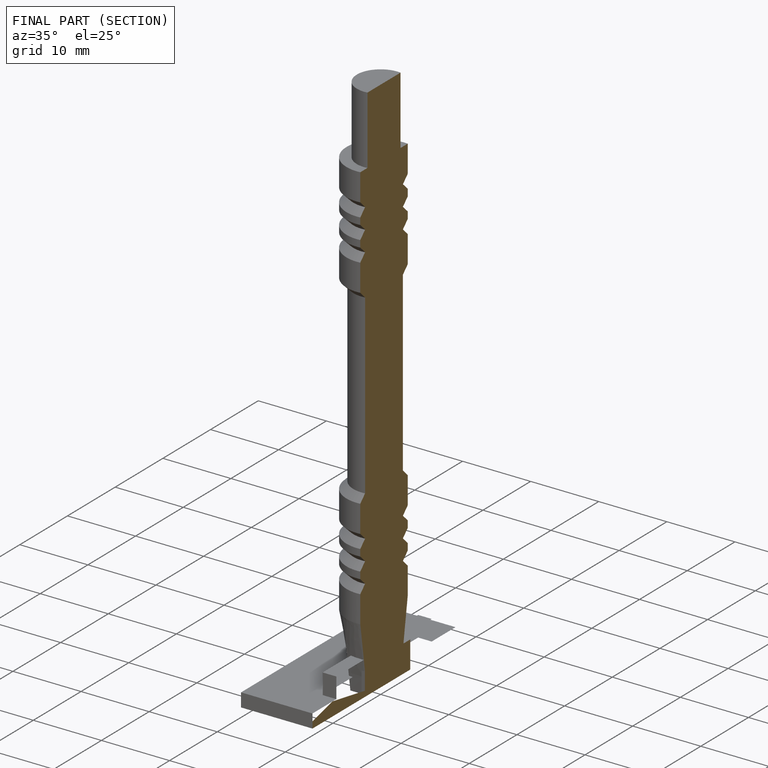
[diagram: finished part — half-section view (interior)]
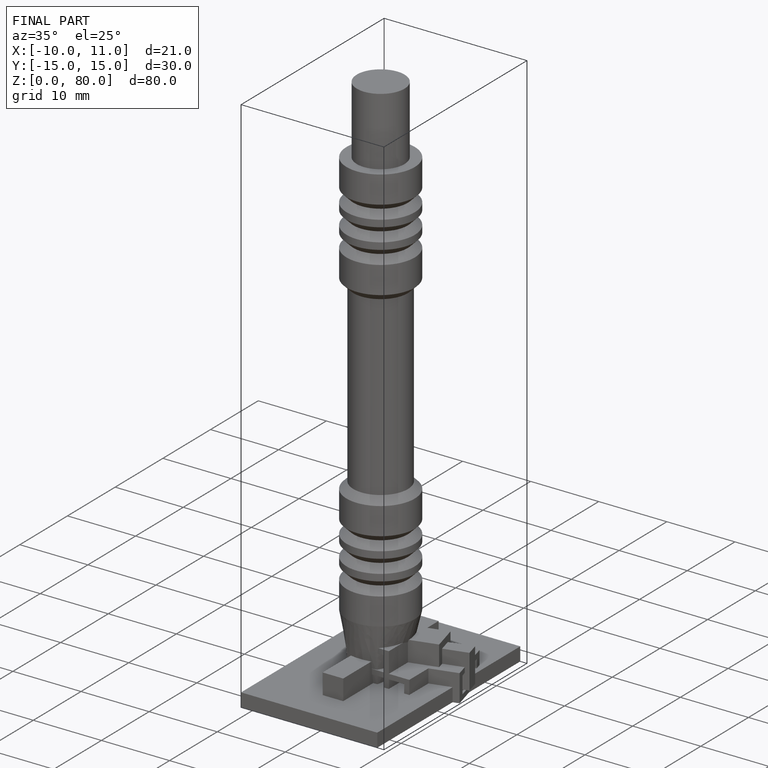
[diagram: finished part — iso view with bounding-box wireframe]
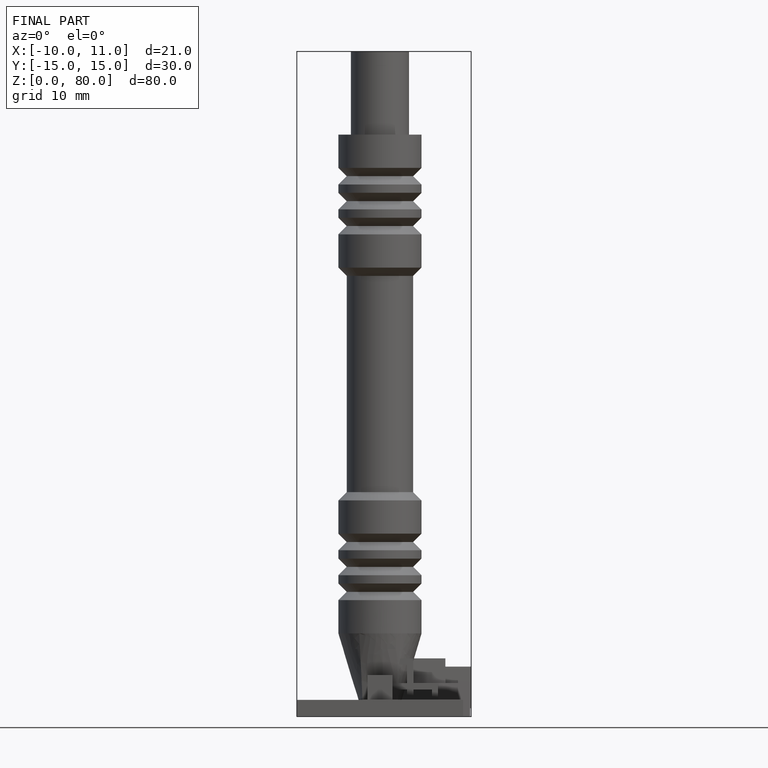
[diagram: finished part — front view with bounding-box wireframe]
